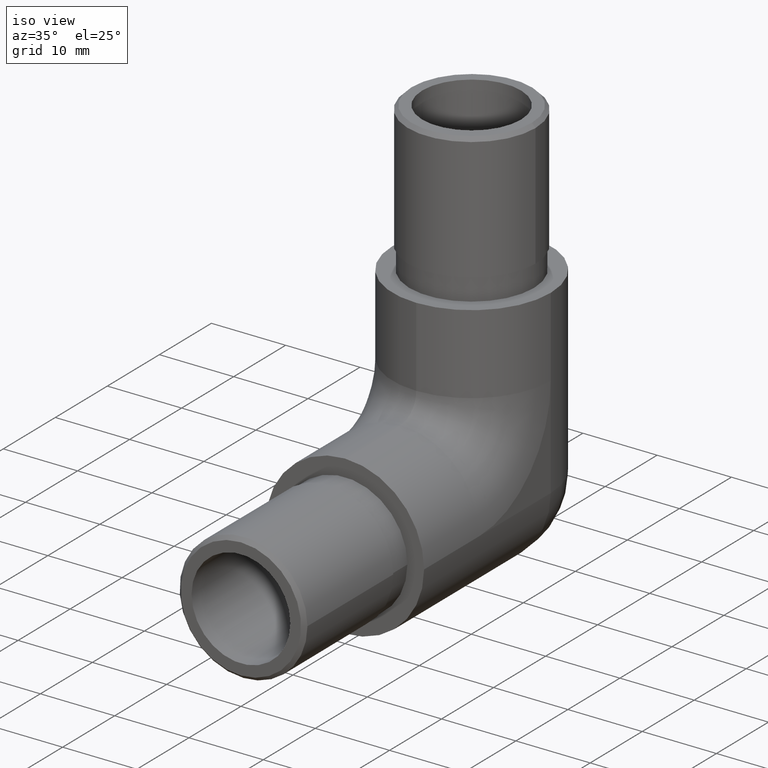
[diagram: clean part render]
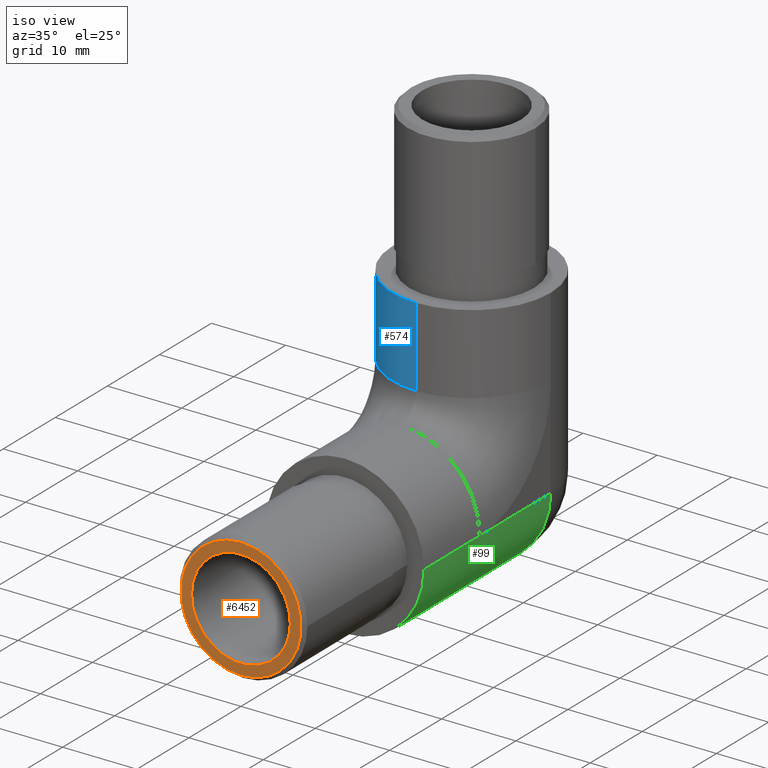
[diagram: same view with three faces highlighted in distinct colors, each labeled with its STEP entity id]
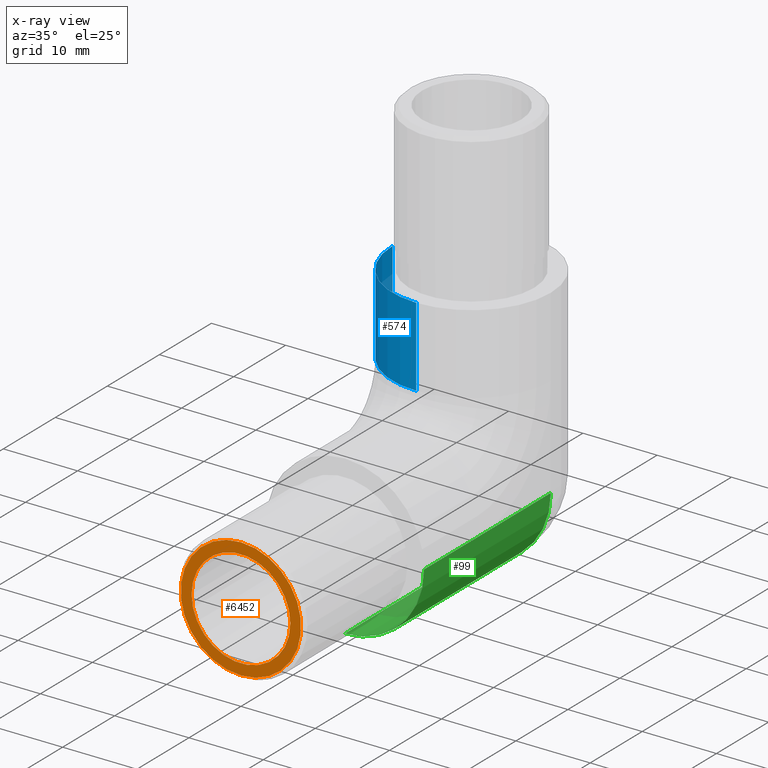
[diagram: x-ray of the same camera — body ghosted, the three highlighted faces saturated]
A machine part, iso view with three faces highlighted in distinct colors.
The next image is the same camera in x-ray (body ghosted, the three faces saturated) — at least one of them is partly hidden behind the body in this view.
Their STEP definitions:

[orange] entity #6452 — the highlighted planar face has unit normal (0, -1, -0).
#396 = FACE_OUTER_BOUND ( 'NONE', #3886, .T. ) ;
#459 = CARTESIAN_POINT ( 'NONE',  ( 5.700969169876829800E-015, -19.99999999999999300, -1.795785742331190700E-014 ) ) ;
#598 = DIRECTION ( 'NONE',  ( -0.0000000000000000000, 1.000000000000000000, 4.440892098500625200E-016 ) ) ;
#1007 = VERTEX_POINT ( 'NONE', #12776 ) ;
#2299 = AXIS2_PLACEMENT_3D ( 'NONE', #2553, #598, #3523 ) ;
#2553 = CARTESIAN_POINT ( 'NONE',  ( 5.700969169876829800E-015, -19.99999999999999300, -1.795785742331190700E-014 ) ) ;
#3523 = DIRECTION ( 'NONE',  ( 1.000000000000000000, 0.0000000000000000000, 0.0000000000000000000 ) ) ;
#3680 = DIRECTION ( 'NONE',  ( 0.0000000000000000000, 4.283267841918047900E-016, -1.000000000000000000 ) ) ;
#3886 = EDGE_LOOP ( 'NONE', ( #11915 ) ) ;
#4044 = DIRECTION ( 'NONE',  ( 0.0000000000000000000, -1.000000000000000000, -4.440892098500625200E-016 ) ) ;
#4581 = CARTESIAN_POINT ( 'NONE',  ( 5.700969169876829800E-015, -19.99999999999998900, -8.100000000000006800 ) ) ;
#4729 = CIRCLE ( 'NONE', #2299, 6.650000000000000400 ) ;
#6293 = EDGE_LOOP ( 'NONE', ( #8898 ) ) ;
#6452 = ADVANCED_FACE ( 'NONE', ( #396, #9752 ), #7106, .T. ) ;
#7106 = PLANE ( 'NONE',  #10753 ) ;
#7392 = AXIS2_PLACEMENT_3D ( 'NONE', #459, #11779, #3680 ) ;
#8641 = EDGE_CURVE ( 'NONE', #1007, #1007, #4729, .T. ) ;
#8727 = CIRCLE ( 'NONE', #7392, 8.099999999999989000 ) ;
#8898 = ORIENTED_EDGE ( 'NONE', *, *, #8641, .T. ) ;
#9752 = FACE_BOUND ( 'NONE', #6293, .T. ) ;
#10208 = CARTESIAN_POINT ( 'NONE',  ( 5.700969169876829800E-015, -19.99999999999999300, -1.795785742331190700E-014 ) ) ;
#10753 = AXIS2_PLACEMENT_3D ( 'NONE', #10208, #4044, #12206 ) ;
#11457 = VERTEX_POINT ( 'NONE', #4581 ) ;
#11779 = DIRECTION ( 'NONE',  ( 0.0000000000000000000, -1.000000000000000000, -4.440892098500625200E-016 ) ) ;
#11905 = EDGE_CURVE ( 'NONE', #11457, #11457, #8727, .T. ) ;
#11915 = ORIENTED_EDGE ( 'NONE', *, *, #11905, .T. ) ;
#12206 = DIRECTION ( 'NONE',  ( 1.000000000000000000, 0.0000000000000000000, 0.0000000000000000000 ) ) ;
#12776 = CARTESIAN_POINT ( 'NONE',  ( 6.650000000000006600, -19.99999999999999300, -1.795785742331190700E-014 ) ) ;

[blue] entity #574 — the highlighted cylindrical surface (partial cylindrical patch) has radius 10.65 mm, axis along (-0, 0, -1).
#507 = VECTOR ( 'NONE', #3376, 1000.000000000000000 ) ;
#574 = ADVANCED_FACE ( 'NONE', ( #3151 ), #9269, .T. ) ;
#627 = EDGE_CURVE ( 'NONE', #11043, #10173, #10872, .T. ) ;
#1226 = CARTESIAN_POINT ( 'NONE',  ( 5.204170427930421300E-015, 13.69999999999999400, 24.34999999999999400 ) ) ;
#1885 = CARTESIAN_POINT ( 'NONE',  ( 3.461302710282362500E-015, 24.34999999999999400, 13.64999999999999900 ) ) ;
#2008 = CIRCLE ( 'NONE', #10314, 10.65000000000000000 ) ;
#2097 = ORIENTED_EDGE ( 'NONE', *, *, #627, .T. ) ;
#3086 = ORIENTED_EDGE ( 'NONE', *, *, #10455, .F. ) ;
#3151 = FACE_OUTER_BOUND ( 'NONE', #9388, .T. ) ;
#3376 = DIRECTION ( 'NONE',  ( -1.628848334250523100E-016, 0.0000000000000000000, -1.000000000000000000 ) ) ;
#4046 = CARTESIAN_POINT ( 'NONE',  ( -10.65000000000000600, 24.35000000000000500, 24.34999999999999800 ) ) ;
#4725 = LINE ( 'NONE', #1226, #507 ) ;
#5230 = ORIENTED_EDGE ( 'NONE', *, *, #10430, .F. ) ;
#5506 = DIRECTION ( 'NONE',  ( -1.628848334250523100E-016, 0.0000000000000000000, -1.000000000000000000 ) ) ;
#6548 = DIRECTION ( 'NONE',  ( -1.000000000000000000, 0.0000000000000000000, 3.257696668501046100E-016 ) ) ;
#6763 = CARTESIAN_POINT ( 'NONE',  ( -10.64999999999999700, 24.35000000000000500, 13.65000000000000000 ) ) ;
#7382 = DIRECTION ( 'NONE',  ( -1.000000000000000000, 0.0000000000000000000, 0.0000000000000000000 ) ) ;
#7482 = VECTOR ( 'NONE', #10926, 1000.000000000000000 ) ;
#7816 = CARTESIAN_POINT ( 'NONE',  ( 5.204170427930421300E-015, 13.69999999999999400, 24.34999999999999800 ) ) ;
#8181 = ORIENTED_EDGE ( 'NONE', *, *, #12845, .F. ) ;
#8663 = CARTESIAN_POINT ( 'NONE',  ( 5.204170427930421300E-015, 24.34999999999999100, 24.34999999999999400 ) ) ;
#8943 = DIRECTION ( 'NONE',  ( -1.628848334250523300E-016, -0.0000000000000000000, -1.000000000000000000 ) ) ;
#9269 = CYLINDRICAL_SURFACE ( 'NONE', #9934, 10.65000000000000000 ) ;
#9388 = EDGE_LOOP ( 'NONE', ( #5230, #2097, #8181, #3086 ) ) ;
#9537 = CARTESIAN_POINT ( 'NONE',  ( 5.204170427930422100E-015, 24.34999999999999100, 24.34999999999999800 ) ) ;
#9586 = DIRECTION ( 'NONE',  ( -0.0000000000000000000, -0.0000000000000000000, 1.000000000000000000 ) ) ;
#9808 = VERTEX_POINT ( 'NONE', #7816 ) ;
#9934 = AXIS2_PLACEMENT_3D ( 'NONE', #8663, #5506, #6548 ) ;
#10074 = DIRECTION ( 'NONE',  ( -1.000000000000000000, 0.0000000000000000000, 1.628848334250523100E-016 ) ) ;
#10173 = VERTEX_POINT ( 'NONE', #6763 ) ;
#10314 = AXIS2_PLACEMENT_3D ( 'NONE', #9537, #9586, #7382 ) ;
#10430 = EDGE_CURVE ( 'NONE', #11043, #9808, #2008, .T. ) ;
#10455 = EDGE_CURVE ( 'NONE', #9808, #12722, #4725, .T. ) ;
#10872 = LINE ( 'NONE', #13098, #7482 ) ;
#10926 = DIRECTION ( 'NONE',  ( -1.628848334250523100E-016, -0.0000000000000000000, -1.000000000000000000 ) ) ;
#11043 = VERTEX_POINT ( 'NONE', #4046 ) ;
#12240 = AXIS2_PLACEMENT_3D ( 'NONE', #1885, #8943, #10074 ) ;
#12575 = CIRCLE ( 'NONE', #12240, 10.65000000000000000 ) ;
#12722 = VERTEX_POINT ( 'NONE', #12952 ) ;
#12845 = EDGE_CURVE ( 'NONE', #12722, #10173, #12575, .T. ) ;
#12952 = CARTESIAN_POINT ( 'NONE',  ( 5.204170427930421300E-015, 13.69999999999999400, 13.64999999999999900 ) ) ;
#13098 = CARTESIAN_POINT ( 'NONE',  ( -10.64999999999999900, 24.35000000000000500, 0.0000000000000000000 ) ) ;

[green] entity #99 — the highlighted cylindrical surface (partial cylindrical patch) has radius 10.65 mm, axis along (0, -1, 0).
#99 = ADVANCED_FACE ( 'NONE', ( #3464 ), #8615, .T. ) ;
#128 = DIRECTION ( 'NONE',  ( 0.0000000000000000000, 0.0000000000000000000, -1.000000000000000000 ) ) ;
#466 = CARTESIAN_POINT ( 'NONE',  ( 10.65000000000000200, 24.35000000000000500, -2.602085213965211000E-015 ) ) ;
#1454 = EDGE_CURVE ( 'NONE', #8676, #9820, #11996, .T. ) ;
#1538 = CARTESIAN_POINT ( 'NONE',  ( 1.734723475976807100E-015, 35.00000000000000000, 0.0000000000000000000 ) ) ;
#1586 = CARTESIAN_POINT ( 'NONE',  ( 10.65000000000000200, 35.00000000000000000, -3.469446951953614200E-015 ) ) ;
#2465 = VECTOR ( 'NONE', #4162, 1000.000000000000000 ) ;
#3087 = VERTEX_POINT ( 'NONE', #466 ) ;
#3250 = LINE ( 'NONE', #6723, #6792 ) ;
#3457 = ORIENTED_EDGE ( 'NONE', *, *, #13143, .F. ) ;
#3464 = FACE_OUTER_BOUND ( 'NONE', #4773, .T. ) ;
#3805 = CARTESIAN_POINT ( 'NONE',  ( 1.734723475976807100E-015, 24.35000000000000500, -10.65000000000000000 ) ) ;
#3854 = AXIS2_PLACEMENT_3D ( 'NONE', #7397, #12528, #128 ) ;
#3988 = ORIENTED_EDGE ( 'NONE', *, *, #1454, .F. ) ;
#4162 = DIRECTION ( 'NONE',  ( -0.0000000000000000000, 1.000000000000000000, -0.0000000000000000000 ) ) ;
#4244 = CARTESIAN_POINT ( 'NONE',  ( 1.734723475976807500E-015, 24.35000000000000500, -10.65000000000000000 ) ) ;
#4773 = EDGE_LOOP ( 'NONE', ( #12484, #3457, #8232, #3988, #10832 ) ) ;
#5007 = VERTEX_POINT ( 'NONE', #3805 ) ;
#5204 = LINE ( 'NONE', #4244, #2465 ) ;
#6480 = CARTESIAN_POINT ( 'NONE',  ( 1.734723475976807100E-015, 0.0000000000000000000, 0.0000000000000000000 ) ) ;
#6681 = DIRECTION ( 'NONE',  ( -0.0000000000000000000, 1.000000000000000000, -0.0000000000000000000 ) ) ;
#6723 = CARTESIAN_POINT ( 'NONE',  ( 10.65000000000000200, 35.00000000000000000, -3.469446951953614200E-015 ) ) ;
#6792 = VECTOR ( 'NONE', #6681, 1000.000000000000000 ) ;
#7397 = CARTESIAN_POINT ( 'NONE',  ( 1.734723475976807100E-015, 24.35000000000000500, 0.0000000000000000000 ) ) ;
#7586 = AXIS2_PLACEMENT_3D ( 'NONE', #1538, #11042, #9952 ) ;
#8129 = CARTESIAN_POINT ( 'NONE',  ( 10.65000000000000200, 10.69999999999999400, -3.469446951953614200E-015 ) ) ;
#8232 = ORIENTED_EDGE ( 'NONE', *, *, #12308, .F. ) ;
#8278 = CIRCLE ( 'NONE', #3854, 10.65000000000000000 ) ;
#8432 = DIRECTION ( 'NONE',  ( -8.881784197001252300E-016, 0.0000000000000000000, 1.000000000000000000 ) ) ;
#8600 = DIRECTION ( 'NONE',  ( -0.0000000000000000000, -1.000000000000000000, -0.0000000000000000000 ) ) ;
#8615 = CYLINDRICAL_SURFACE ( 'NONE', #7586, 10.65000000000000000 ) ;
#8676 = VERTEX_POINT ( 'NONE', #13074 ) ;
#8787 = DIRECTION ( 'NONE',  ( -0.0000000000000000000, 1.000000000000000000, -0.0000000000000000000 ) ) ;
#9029 = CARTESIAN_POINT ( 'NONE',  ( 10.65000000000000200, 0.0000000000000000000, -3.469446951953614200E-015 ) ) ;
#9820 = VERTEX_POINT ( 'NONE', #9029 ) ;
#9910 = EDGE_CURVE ( 'NONE', #5007, #3087, #8278, .T. ) ;
#9952 = DIRECTION ( 'NONE',  ( 0.0000000000000000000, 0.0000000000000000000, -1.000000000000000000 ) ) ;
#10296 = VERTEX_POINT ( 'NONE', #8129 ) ;
#10346 = EDGE_CURVE ( 'NONE', #8676, #5007, #5204, .T. ) ;
#10478 = VECTOR ( 'NONE', #8787, 1000.000000000000000 ) ;
#10705 = AXIS2_PLACEMENT_3D ( 'NONE', #6480, #8600, #8432 ) ;
#10832 = ORIENTED_EDGE ( 'NONE', *, *, #10346, .T. ) ;
#11042 = DIRECTION ( 'NONE',  ( 0.0000000000000000000, -1.000000000000000000, 0.0000000000000000000 ) ) ;
#11996 = CIRCLE ( 'NONE', #10705, 10.65000000000000000 ) ;
#12308 = EDGE_CURVE ( 'NONE', #9820, #10296, #3250, .T. ) ;
#12484 = ORIENTED_EDGE ( 'NONE', *, *, #9910, .T. ) ;
#12528 = DIRECTION ( 'NONE',  ( 0.0000000000000000000, -1.000000000000000000, 0.0000000000000000000 ) ) ;
#13074 = CARTESIAN_POINT ( 'NONE',  ( 1.734723475976807100E-015, 0.0000000000000000000, -10.65000000000000000 ) ) ;
#13143 = EDGE_CURVE ( 'NONE', #10296, #3087, #13396, .T. ) ;
#13396 = LINE ( 'NONE', #1586, #10478 ) ;